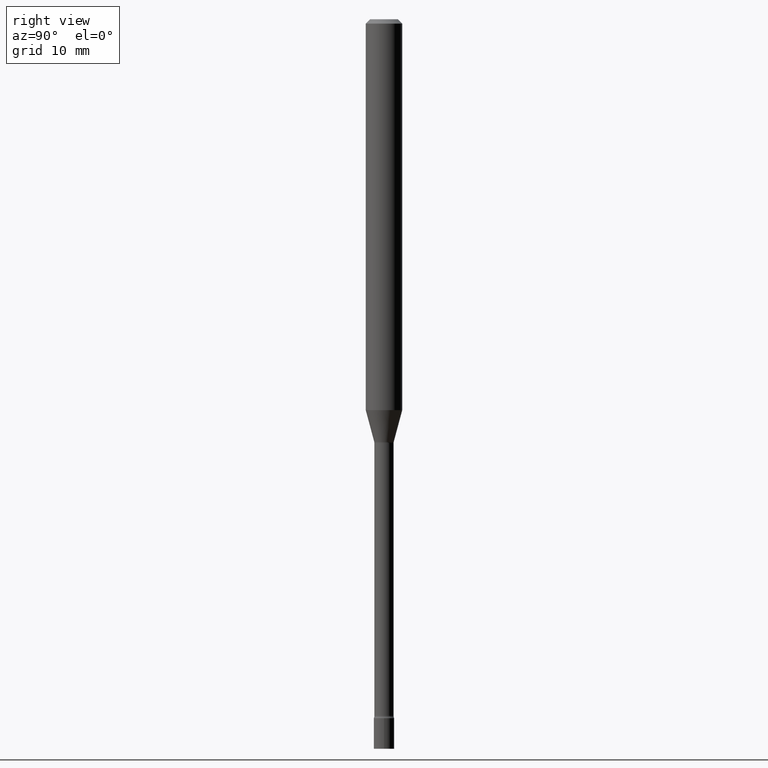
[diagram: clean part render]
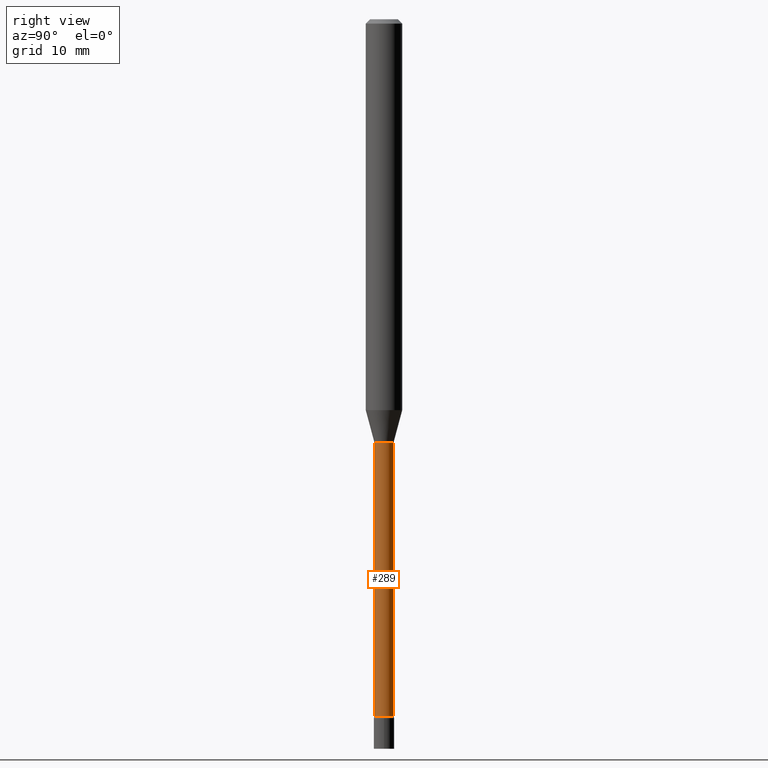
[diagram: same view with one face highlighted and labeled with its STEP entity id]
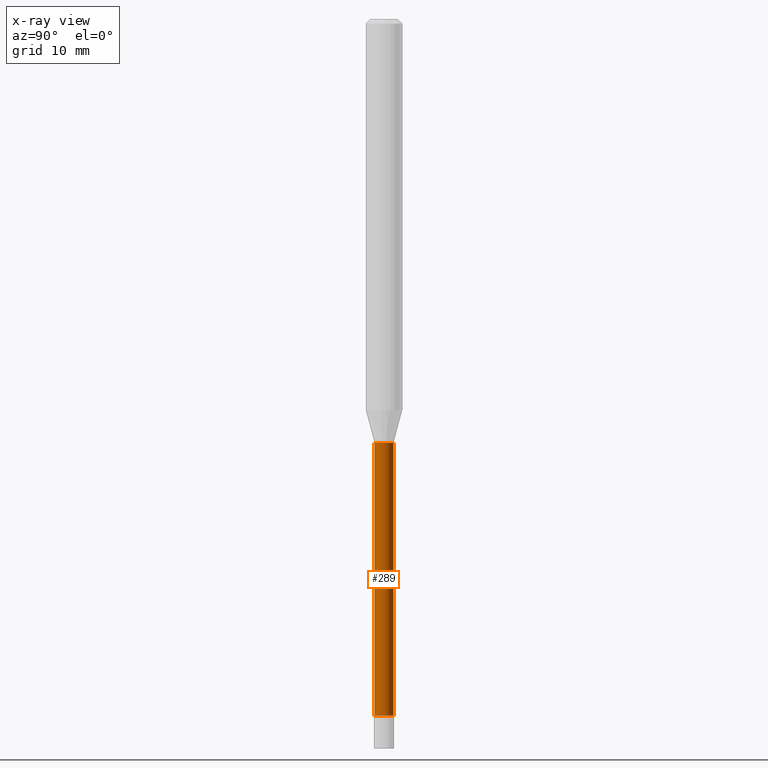
[diagram: x-ray of the same camera — body ghosted, the highlighted face saturated]
A machine part, right view. The second image highlights one B-rep face of the part: STEP entity #289.
The next image is the same camera in x-ray: the body ghosted, the highlighted face saturated — about 0% of this face is hidden behind the body in this view.
In plain terms, the highlighted cylindrical surface (edge-blend (fillet) strip) has radius 0.8357 mm, axis along (-0, 0, 1).
Its self-contained STEP definition (entity closure, byte-faithful):
#20 = DIRECTION ( 'NONE',  ( -6.982962677686266711E-15, -1.000000000000000000, 3.491435758123258259E-15 ) ) ;
#38 = AXIS2_PLACEMENT_3D ( 'NONE', #283, #196, #350 ) ;
#53 = FACE_OUTER_BOUND ( 'NONE', #343, .T. ) ;
#56 = ORIENTED_EDGE ( 'NONE', *, *, #239, .T. ) ;
#57 = CARTESIAN_POINT ( 'NONE',  ( 0.000000000000000000, 0.000000000000000000, 0.000000000000000000 ) ) ;
#74 = CARTESIAN_POINT ( 'NONE',  ( 2.337685600650734449E-16, 0.03290000000000006808, -1.148682364422554388E-16 ) ) ;
#80 = AXIS2_PLACEMENT_3D ( 'NONE', #486, #520, #210 ) ;
#94 = CYLINDRICAL_SURFACE ( 'NONE', #372, 0.03290000000000006808 ) ;
#103 = DIRECTION ( 'NONE',  ( -2.445500635031716319E-29, 3.491435758123258259E-15, 1.000000000000000000 ) ) ;
#130 = LINE ( 'NONE', #364, #233 ) ;
#134 = CARTESIAN_POINT ( 'NONE',  ( -2.297394720958425553E-16, -0.03290000000000506408, -1.451974787463811145 ) ) ;
#162 = LINE ( 'NONE', #74, #169 ) ;
#169 = VECTOR ( 'NONE', #387, 39.37007874015748143 ) ;
#178 = EDGE_CURVE ( 'NONE', #328, #457, #130, .T. ) ;
#193 = CARTESIAN_POINT ( 'NONE',  ( 2.337685600651317713E-16, 0.03289999999999492636, -1.451974787463811145 ) ) ;
#196 = DIRECTION ( 'NONE',  ( -2.445500635031716319E-29, 3.491435758123258259E-15, 1.000000000000000000 ) ) ;
#204 = CARTESIAN_POINT ( 'NONE',  ( 2.412292587906128890E-16, 0.03289999999999180386, -2.387345589506696175 ) ) ;
#210 = DIRECTION ( 'NONE',  ( -6.982962677686265922E-15, -1.000000000000000000, 0.000000000000000000 ) ) ;
#217 = EDGE_CURVE ( 'NONE', #497, #227, #162, .T. ) ;
#227 = VERTEX_POINT ( 'NONE', #193 ) ;
#233 = VECTOR ( 'NONE', #288, 39.37007874015748143 ) ;
#239 = EDGE_CURVE ( 'NONE', #328, #497, #382, .T. ) ;
#283 = CARTESIAN_POINT ( 'NONE',  ( 5.838255155178791829E-29, -8.335263758201529460E-15, -2.387345589506696175 ) ) ;
#288 = DIRECTION ( 'NONE',  ( -2.445500635031716319E-29, 3.491435758123258259E-15, 1.000000000000000000 ) ) ;
#289 = ADVANCED_FACE ( 'NONE', ( #53 ), #94, .T. ) ;
#328 = VERTEX_POINT ( 'NONE', #502 ) ;
#343 = EDGE_LOOP ( 'NONE', ( #56, #346, #380, #454 ) ) ;
#346 = ORIENTED_EDGE ( 'NONE', *, *, #217, .T. ) ;
#350 = DIRECTION ( 'NONE',  ( -6.982962677686265133E-15, -1.000000000000000000, 0.000000000000000000 ) ) ;
#364 = CARTESIAN_POINT ( 'NONE',  ( -2.297394720958786457E-16, -0.03290000000000006808, 1.148682364422554388E-16 ) ) ;
#372 = AXIS2_PLACEMENT_3D ( 'NONE', #57, #103, #20 ) ;
#380 = ORIENTED_EDGE ( 'NONE', *, *, #404, .F. ) ;
#382 = CIRCLE ( 'NONE', #38, 0.03290000000000014441 ) ;
#387 = DIRECTION ( 'NONE',  ( -2.445500635031716319E-29, 3.491435758123258259E-15, 1.000000000000000000 ) ) ;
#404 = EDGE_CURVE ( 'NONE', #457, #227, #513, .T. ) ;
#454 = ORIENTED_EDGE ( 'NONE', *, *, #178, .F. ) ;
#457 = VERTEX_POINT ( 'NONE', #134 ) ;
#486 = CARTESIAN_POINT ( 'NONE',  ( 3.550805264792791368E-29, -5.069476692844568029E-15, -1.451974787463811145 ) ) ;
#497 = VERTEX_POINT ( 'NONE', #204 ) ;
#502 = CARTESIAN_POINT ( 'NONE',  ( -2.297394720958207631E-16, -0.03290000000000847802, -2.387345589506696175 ) ) ;
#513 = CIRCLE ( 'NONE', #80, 0.03289999999999999175 ) ;
#520 = DIRECTION ( 'NONE',  ( -2.445500635031716319E-29, 3.491435758123258259E-15, 1.000000000000000000 ) ) ;